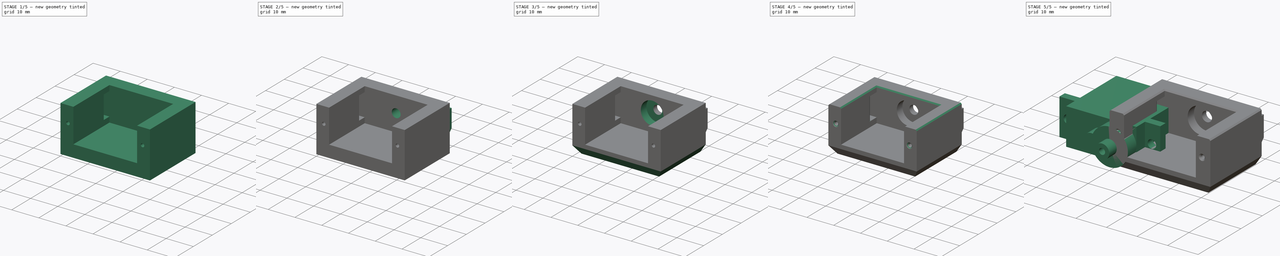
[diagram: build sequence overview — one tinted view per stage of 5, left to right]
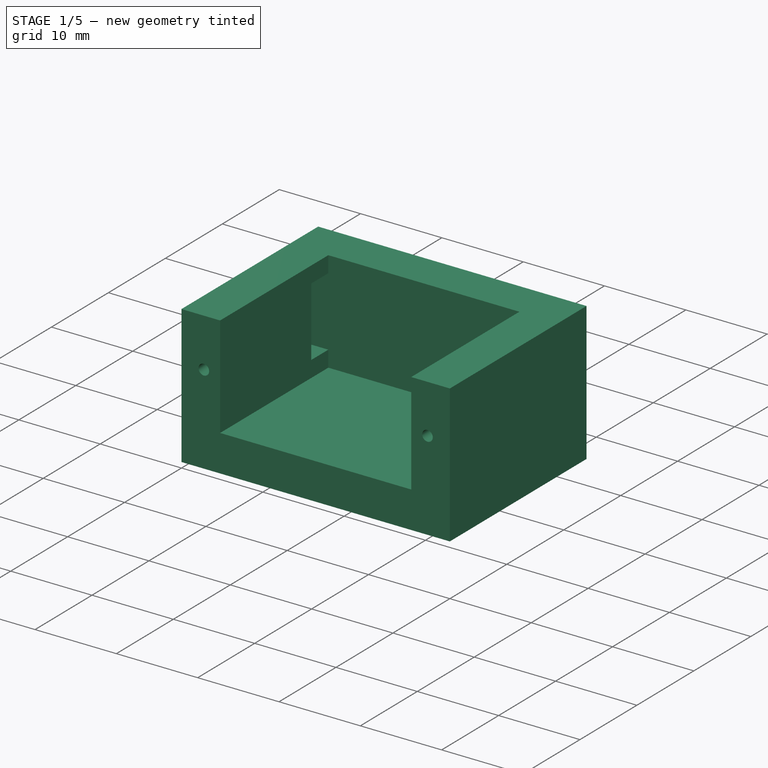
[diagram: stage 1 of 5 — iso view after this stage's code; geometry added in this stage tinted green]
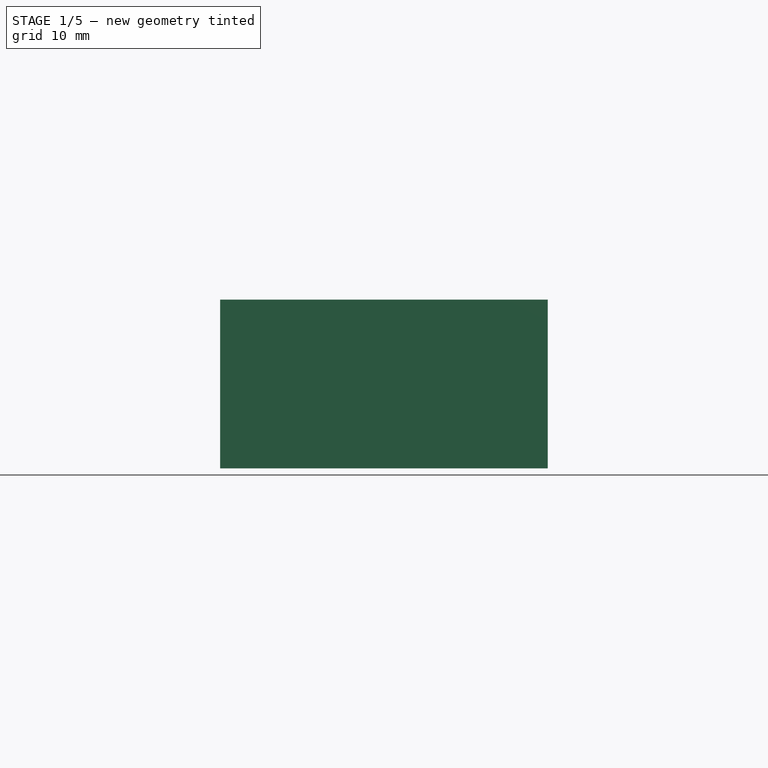
[diagram: stage 1 of 5 — front view after this stage's code; geometry added in this stage tinted green]
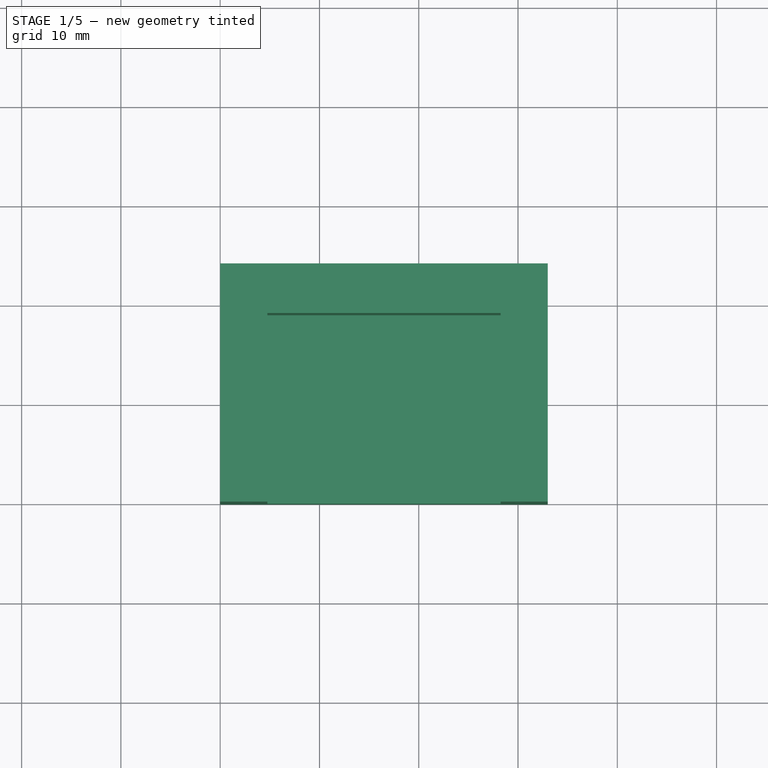
[diagram: stage 1 of 5 — top view after this stage's code; geometry added in this stage tinted green]
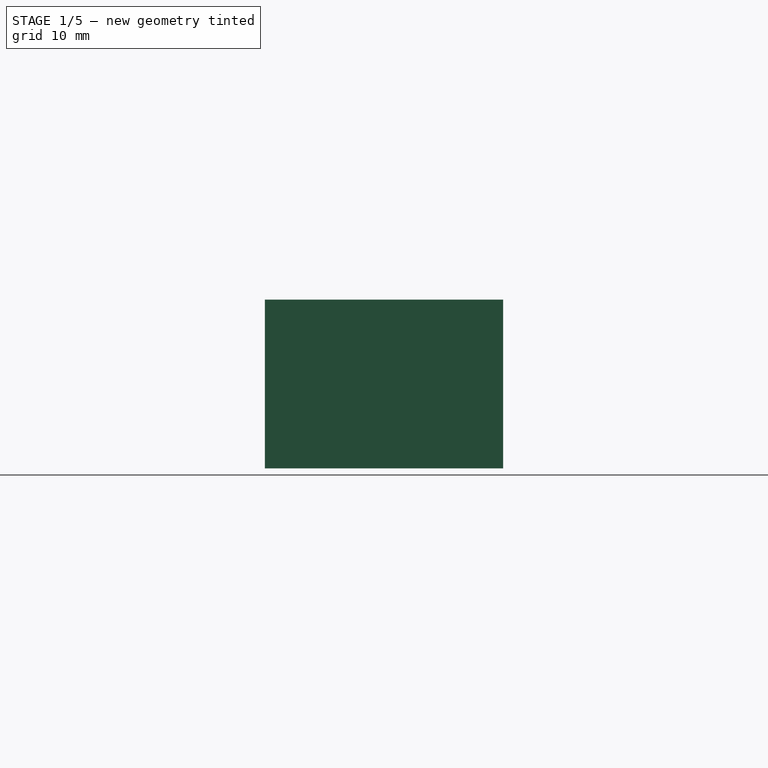
[diagram: stage 1 of 5 — right view after this stage's code; geometry added in this stage tinted green]
FCSTD DOCUMENT  (FreeCAD 0.19R24291 (Git))
Label: nozzle-brush
License: Other
LicenseURL: GPL3
objects: Sketcher::SketchObject×11, PartDesign::Pocket×6, PartDesign::Chamfer×6, PartDesign::Pad×5, PartDesign::Body×2, PartDesign::Fillet×1
note: 49 computed .brp shape members not serialized (recipe doc carries the construction recipe); baked Part::Feature solids carry a one-line shape summary decoded from their .brp

FEATURE [PartDesign::Body] Body  label="servo-pref"
  Group = -> [Sketch,Pad,Sketch001,Pad001,Sketch002,Pad002,Sketch003,Pocket]
  Origin = -> Origin
  Tip = -> Pocket
FEATURE [Sketcher::SketchObject] Sketch004
  FullyConstrained = true
  MapMode = 5
  Support = -> [XY_Plane001]
  sketch-geometry (4):
    g0: LineSegment StartX=0 StartY=0 StartZ=0 EndX=33 EndY=0 EndZ=0
    g1: LineSegment StartX=33 StartY=0 StartZ=0 EndX=33 EndY=24 EndZ=0
    g2: LineSegment StartX=33 StartY=24 StartZ=0 EndX=0 EndY=24 EndZ=0
    g3: LineSegment StartX=0 StartY=24 StartZ=0 EndX=0 EndY=0 EndZ=0
  constraints (11):
    c: Coincident(g0,g1)
    c: Coincident(g1,g2)
    c: Coincident(g2,g3)
    c: Coincident(g3,g0)
    c: Horizontal(g0)
    c: Horizontal(g2)
    c: Vertical(g1)
    c: Vertical(g3)
    c: Coincident(g0,g-1)
    c: DistanceX(g2,g2) = 33
    c: DistanceY(g1,g1) = 24
FEATURE [PartDesign::Pad] Pad003
  Direction = (1,1,1)
  Length = 17
  Length2 = 100
  Profile = -> Sketch004
  Type = 0
FEATURE [Sketcher::SketchObject] Sketch005
  FullyConstrained = true
  MapMode = 5
  Placement = pos=(0,0,17) rot=(0,0,1;0rad)
  Support = -> [Pad003]
  sketch-geometry (4):
    g0: LineSegment StartX=4.75 StartY=0 StartZ=0 EndX=28.25 EndY=0 EndZ=0
    g1: LineSegment StartX=28.25 StartY=0 StartZ=0 EndX=28.25 EndY=19 EndZ=0
    g2: LineSegment StartX=28.25 StartY=19 StartZ=0 EndX=4.75 EndY=19 EndZ=0
    g3: LineSegment StartX=4.75 StartY=19 StartZ=0 EndX=4.75 EndY=0 EndZ=0
  constraints (12):
    c: Coincident(g0,g1)
    c: Coincident(g1,g2)
    c: Coincident(g2,g3)
    c: Coincident(g3,g0)
    c: Horizontal(g0)
    c: Horizontal(g2)
    c: Vertical(g1)
    c: Vertical(g3)
    c: PointOnObject(g0,g-1)
    c: DistanceX(g2,g2) = 23.5
    c: DistanceX(g-1,g0) = 4.75
    c: DistanceY(g1,g1) = 19
FEATURE [PartDesign::Pocket] Pocket001
  BaseFeature = -> Pad003
  Length = 12.5
  Length2 = 100
  Profile = -> Sketch005
  Type = 0
FEATURE [Sketcher::SketchObject] Sketch006
  FullyConstrained = true
  MapMode = 5
  Placement = pos=(0,0,0) rot=(0.57735,-0.57735,-0.57735;2.0944rad)
  Support = -> [Pocket001]
  sketch-geometry (4):
    g0: LineSegment StartX=-19 StartY=15 StartZ=0 EndX=-16 EndY=15 EndZ=0
    g1: LineSegment StartX=-16 StartY=15 StartZ=0 EndX=-16 EndY=6.5 EndZ=0
    g2: LineSegment StartX=-16 StartY=6.5 StartZ=0 EndX=-19 EndY=6.5 EndZ=0
    g3: LineSegment StartX=-19 StartY=6.5 StartZ=0 EndX=-19 EndY=15 EndZ=0
  constraints (12):
    c: Coincident(g0,g1)
    c: Coincident(g1,g2)
    c: Coincident(g2,g3)
    c: Coincident(g3,g0)
    c: Horizontal(g0)
    c: Horizontal(g2)
    c: Vertical(g1)
    c: Vertical(g3)
    c: DistanceY(g1,g1) = 8.5
    c: DistanceY(g-1,g1) = 6.5
    c: DistanceX(g2,g2) = 3
    c: DistanceX(g1,g-1) = 16
FEATURE [PartDesign::Pocket] Pocket002
  BaseFeature = -> Pocket001
  Length = 5
  Length2 = 100
  Profile = -> Sketch006
  Type = 0
FEATURE [Sketcher::SketchObject] Sketch007
  FullyConstrained = true
  MapMode = 5
  Placement = pos=(0,0,0) rot=(1,0,0;1.5708rad)
  Support = -> [Pocket002]
  sketch-geometry (2):
    g0: Circle CenterX=2.75 CenterY=11 CenterZ=0 NormalX=0 NormalY=0 NormalZ=1 AngleXU=0 Radius=0.65
    g1: Circle CenterX=30.25 CenterY=11 CenterZ=0 NormalX=0 NormalY=0 NormalZ=1 AngleXU=0 Radius=0.65
  constraints (6):
    c: DistanceX(g0,g1) = 27.5
    c: Horizontal(g0,g1)
    c: DistanceY(g-1,g0) = 11
    c: DistanceX(g-1,g0) = 2.75
    c: Radius(g1) = 0.65
    c: Radius(g0) = 0.65
FEATURE [PartDesign::Pocket] Pocket003
  BaseFeature = -> Pocket002
  Length = 10
  Length2 = 100
  Profile = -> Sketch007
  Type = 0
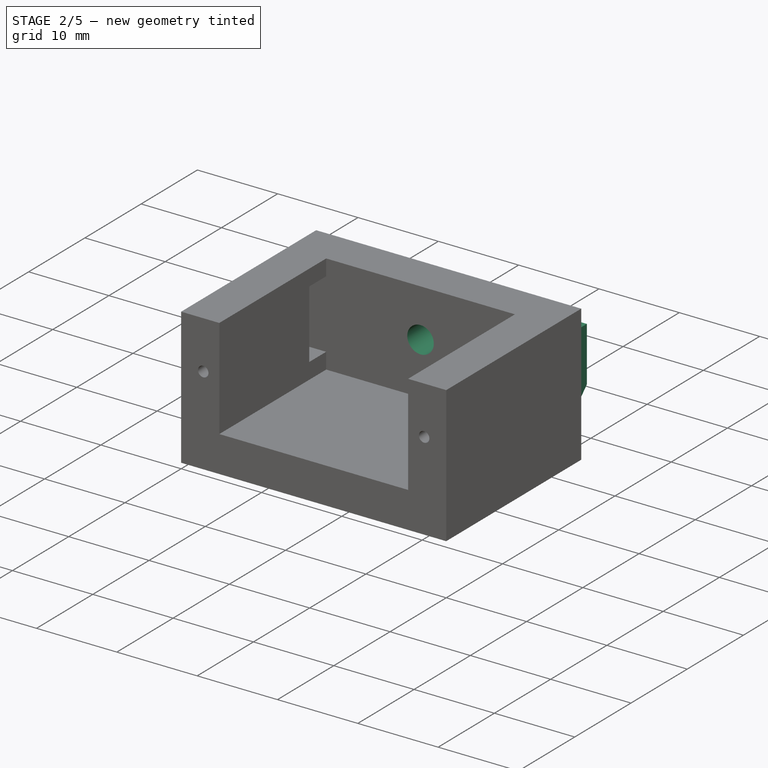
[diagram: stage 2 of 5 — iso view after this stage's code; geometry added in this stage tinted green]
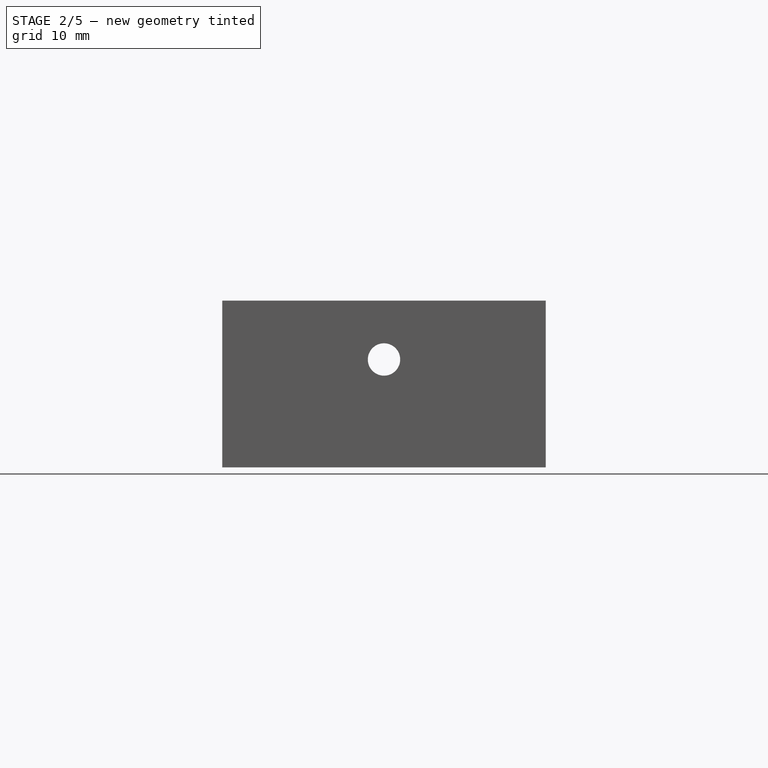
[diagram: stage 2 of 5 — front view after this stage's code; geometry added in this stage tinted green]
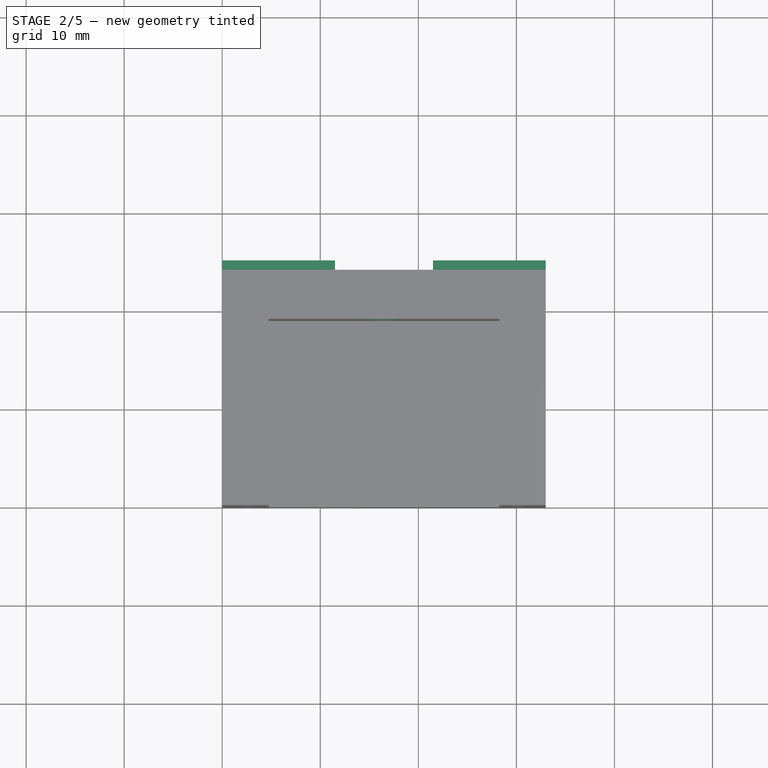
[diagram: stage 2 of 5 — top view after this stage's code; geometry added in this stage tinted green]
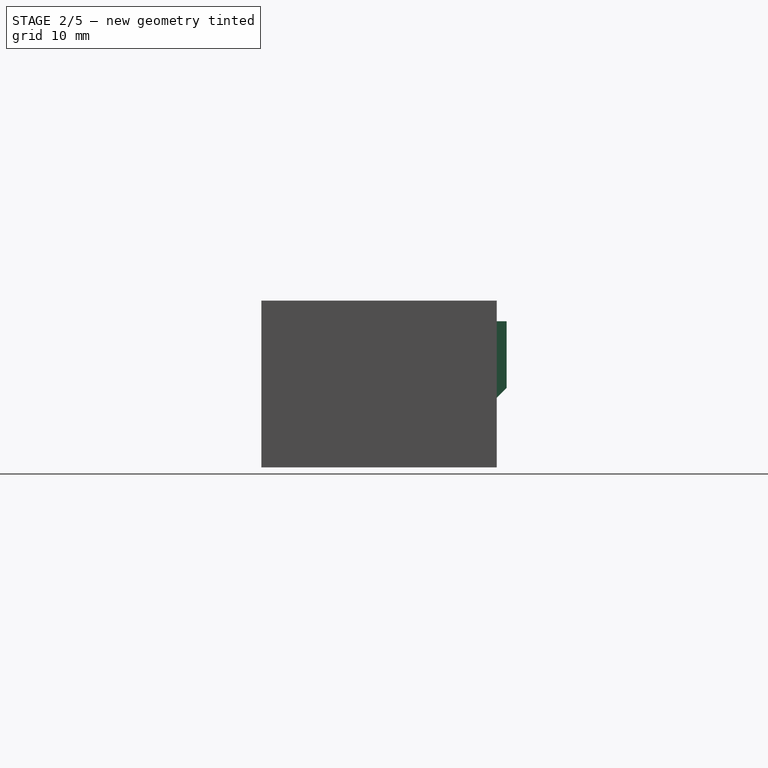
[diagram: stage 2 of 5 — right view after this stage's code; geometry added in this stage tinted green]
FEATURE [Sketcher::SketchObject] Sketch008
  FullyConstrained = true
  MapMode = 5
  Placement = pos=(0,24,0) rot=(0,0.707107,0.707107;3.14159rad)
  Support = -> [Pocket003]
  sketch-geometry (8):
    g0: LineSegment StartX=-33 StartY=14.9 StartZ=0 EndX=-21.5 EndY=14.9 EndZ=0
    g1: LineSegment StartX=-21.5 StartY=14.9 StartZ=0 EndX=-21.5 EndY=7.1 EndZ=0
    g2: LineSegment StartX=-21.5 StartY=7.1 StartZ=0 EndX=-33 EndY=7.1 EndZ=0
    g3: LineSegment StartX=-33 StartY=7.1 StartZ=0 EndX=-33 EndY=14.9 EndZ=0
    g4: LineSegment StartX=-11.5 StartY=14.9 StartZ=0 EndX=0 EndY=14.9 EndZ=0
    g5: LineSegment StartX=0 StartY=14.9 StartZ=0 EndX=0 EndY=7.1 EndZ=0
    g6: LineSegment StartX=0 StartY=7.1 StartZ=0 EndX=-11.5 EndY=7.1 EndZ=0
    g7: LineSegment StartX=-11.5 StartY=7.1 StartZ=0 EndX=-11.5 EndY=14.9 EndZ=0
  constraints (24):
    c: Coincident(g0,g1)
    c: Coincident(g1,g2)
    c: Coincident(g2,g3)
    c: Coincident(g3,g0)
    c: Horizontal(g0)
    c: Horizontal(g2)
    c: Vertical(g1)
    c: Vertical(g3)
    c: Coincident(g4,g5)
    c: Coincident(g5,g6)
    c: Coincident(g6,g7)
    c: Coincident(g7,g4)
    c: Horizontal(g4)
    c: Horizontal(g6)
    c: Vertical(g5)
    c: Vertical(g7)
    c: DistanceX(g4,g4) = 11.5
    c: DistanceX(g0,g0) = 11.5
    c: DistanceY(g3,g3) = 7.8
    c: DistanceY(g7,g7) = 7.8
    c: DistanceX(g0,g4) = 10
    c: DistanceX(g5,g-1) = 0
    c: DistanceY(g-1,g5) = 7.1
    c: Horizontal(g1,g6)
FEATURE [PartDesign::Pad] Pad004
  BaseFeature = -> Pocket003
  Direction = (1,1,1)
  Length = 1
  Length2 = 100
  Profile = -> Sketch008
  Type = 0
FEATURE [PartDesign::Chamfer] Chamfer
  Angle = 45
  Base = -> Pad004 [Edge72,Edge64]
  BaseFeature = -> Pad004
  ChamferType = 0
  FlipDirection = false
  Size = 0.99
  Size2 = 1
  SupportTransform = false
FEATURE [Sketcher::SketchObject] Sketch009
  FullyConstrained = true
  MapMode = 5
  Placement = pos=(0,24,0) rot=(0,0.707107,0.707107;3.14159rad)
  Support = -> [Chamfer]
  sketch-geometry (1):
    g0: Circle CenterX=-16.5 CenterY=11 CenterZ=0 NormalX=0 NormalY=0 NormalZ=1 AngleXU=0 Radius=1.65
  constraints (3):
    c: DistanceY(g-1,g0) = 11
    c: Radius(g0) = 1.65
    c: DistanceX(g0,g-1) = 16.5
FEATURE [PartDesign::Pocket] Pocket004
  BaseFeature = -> Chamfer
  Length = 5
  Length2 = 100
  Profile = -> Sketch009
  Type = 0
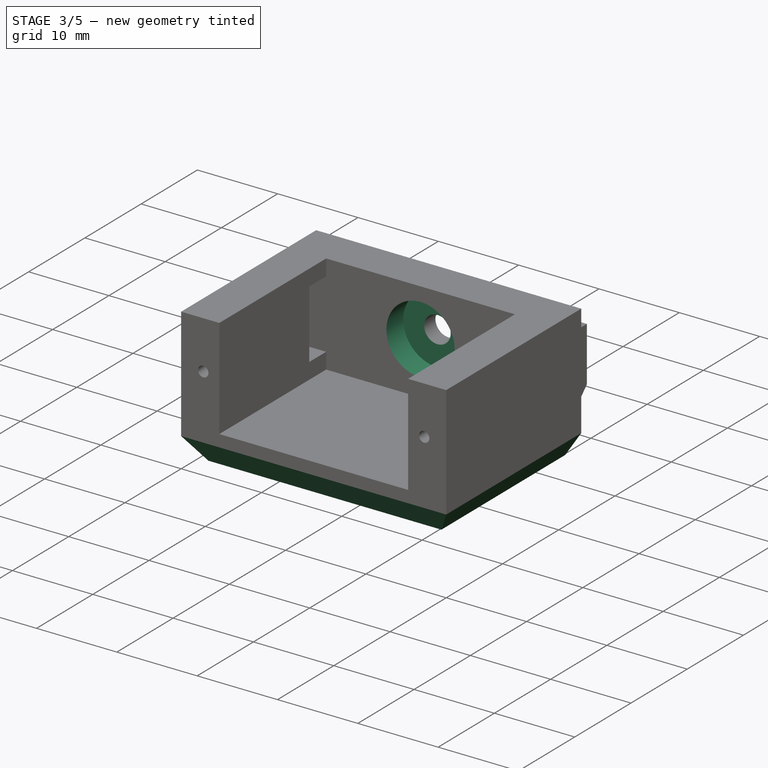
[diagram: stage 3 of 5 — iso view after this stage's code; geometry added in this stage tinted green]
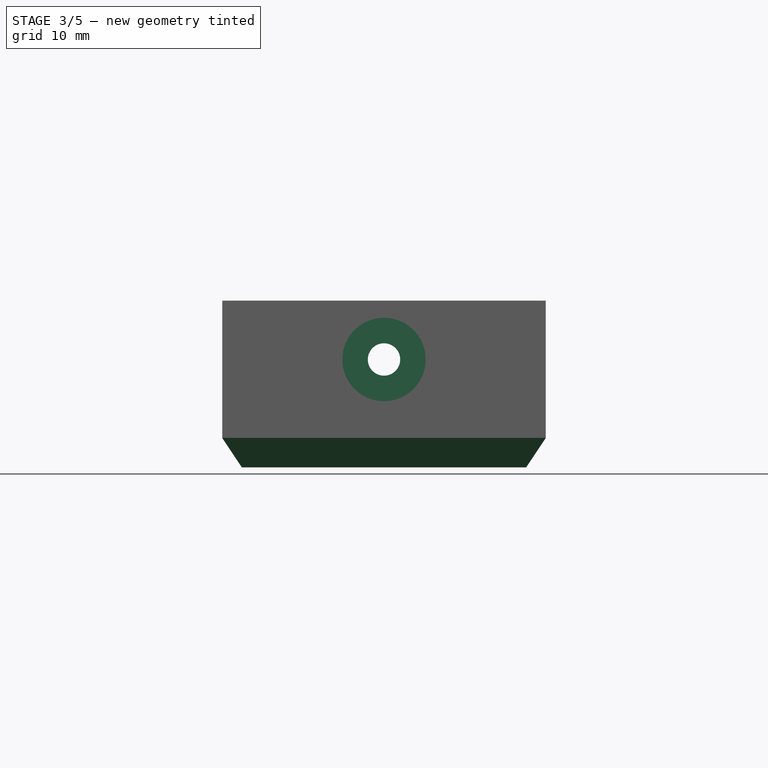
[diagram: stage 3 of 5 — front view after this stage's code; geometry added in this stage tinted green]
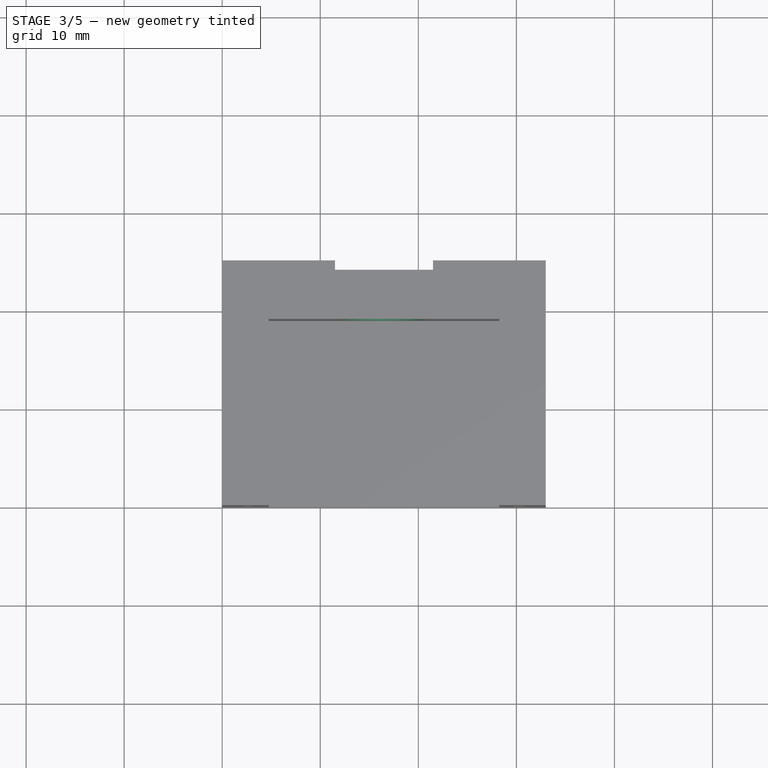
[diagram: stage 3 of 5 — top view after this stage's code; geometry added in this stage tinted green]
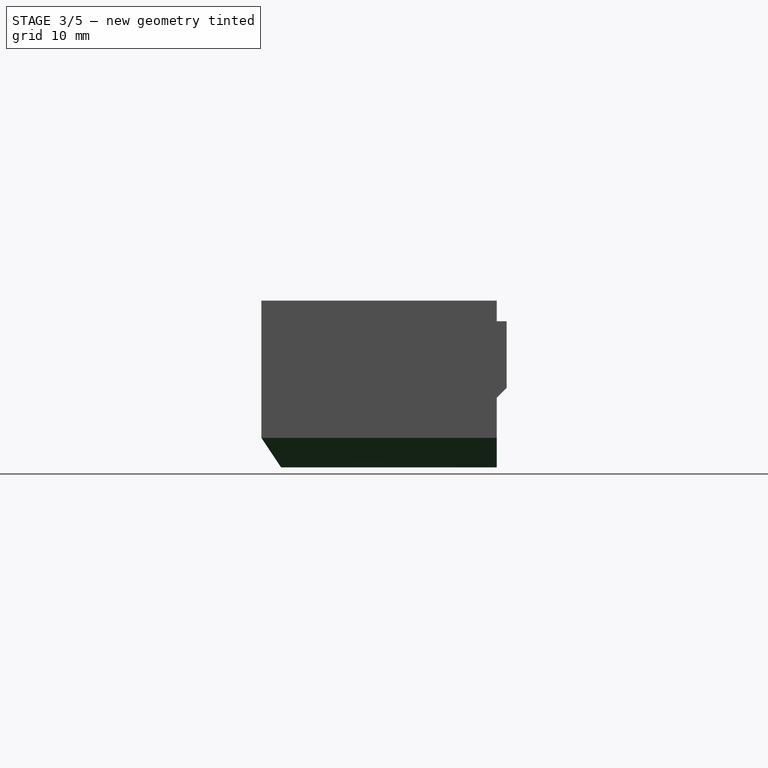
[diagram: stage 3 of 5 — right view after this stage's code; geometry added in this stage tinted green]
FEATURE [Sketcher::SketchObject] Sketch010
  FullyConstrained = true
  MapMode = 5
  Placement = pos=(0,19,0) rot=(1,0,0;1.5708rad)
  Support = -> [Pocket004]
  sketch-geometry (1):
    g0: Circle CenterX=16.5 CenterY=11 CenterZ=0 NormalX=0 NormalY=0 NormalZ=1 AngleXU=0 Radius=4.25
  constraints (3):
    c: DistanceY(g-1,g0) = 11
    c: DistanceX(g-1,g0) = 16.5
    c: Radius(g0) = 4.25
FEATURE [PartDesign::Pocket] Pocket005
  BaseFeature = -> Pocket004
  Length = 3
  Length2 = 100
  Profile = -> Sketch010
  Type = 0
FEATURE [PartDesign::Chamfer] Chamfer001
  Angle = 45
  Base = -> Pocket005 [Edge33]
  BaseFeature = -> Pocket005
  ChamferType = 1
  FlipDirection = false
  Size = 2
  Size2 = 3
  SupportTransform = false
FEATURE [PartDesign::Chamfer] Chamfer002
  Angle = 45
  Base = -> Chamfer001 [Edge1]
  BaseFeature = -> Chamfer001
  ChamferType = 1
  FlipDirection = false
  Size = 3
  Size2 = 2
  SupportTransform = false
FEATURE [PartDesign::Chamfer] Chamfer003
  Angle = 45
  Base = -> Chamfer002 [Edge51]
  BaseFeature = -> Chamfer002
  ChamferType = 1
  FlipDirection = false
  Size = 2
  Size2 = 3
  SupportTransform = false
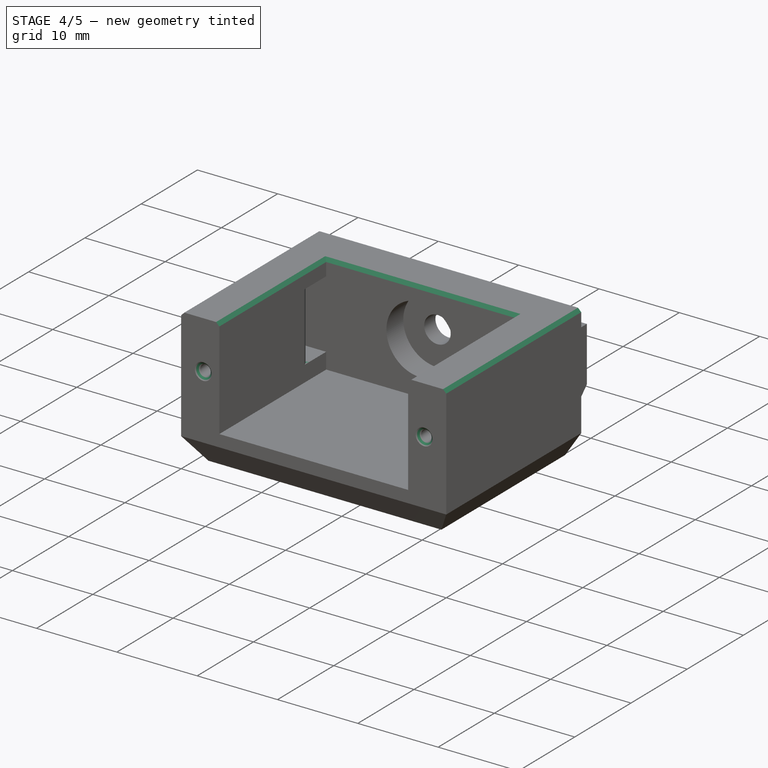
[diagram: stage 4 of 5 — iso view after this stage's code; geometry added in this stage tinted green]
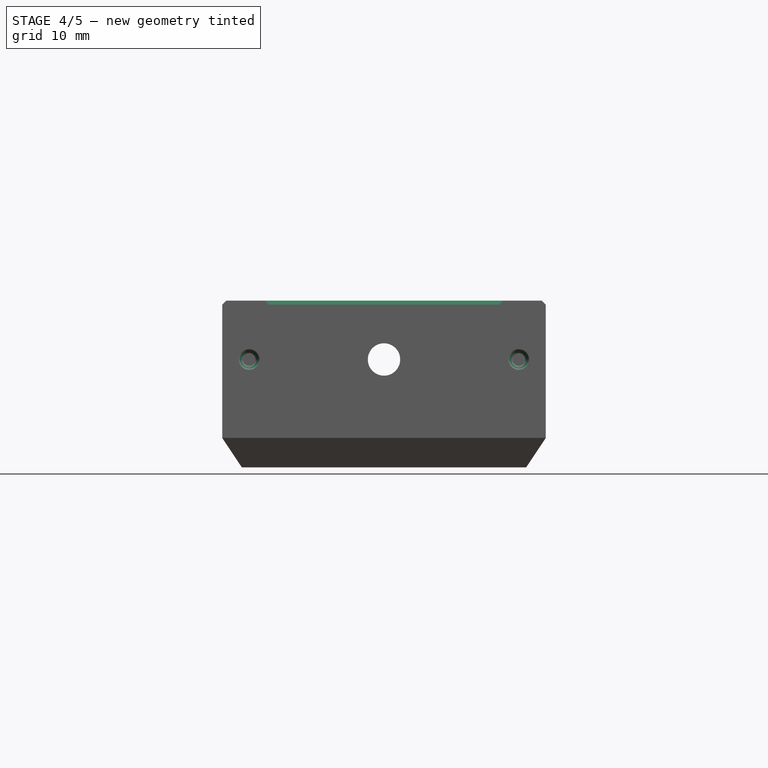
[diagram: stage 4 of 5 — front view after this stage's code; geometry added in this stage tinted green]
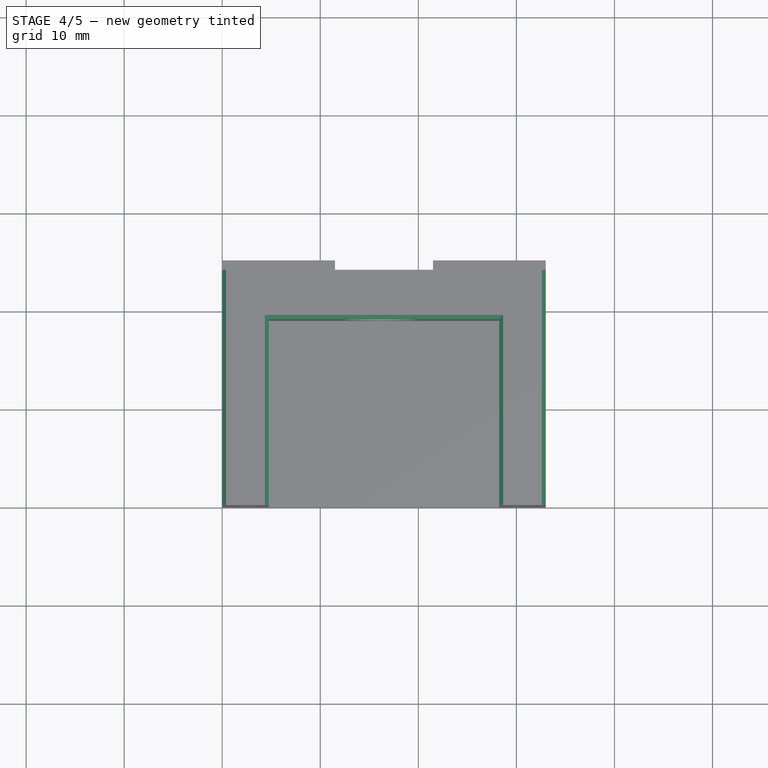
[diagram: stage 4 of 5 — top view after this stage's code; geometry added in this stage tinted green]
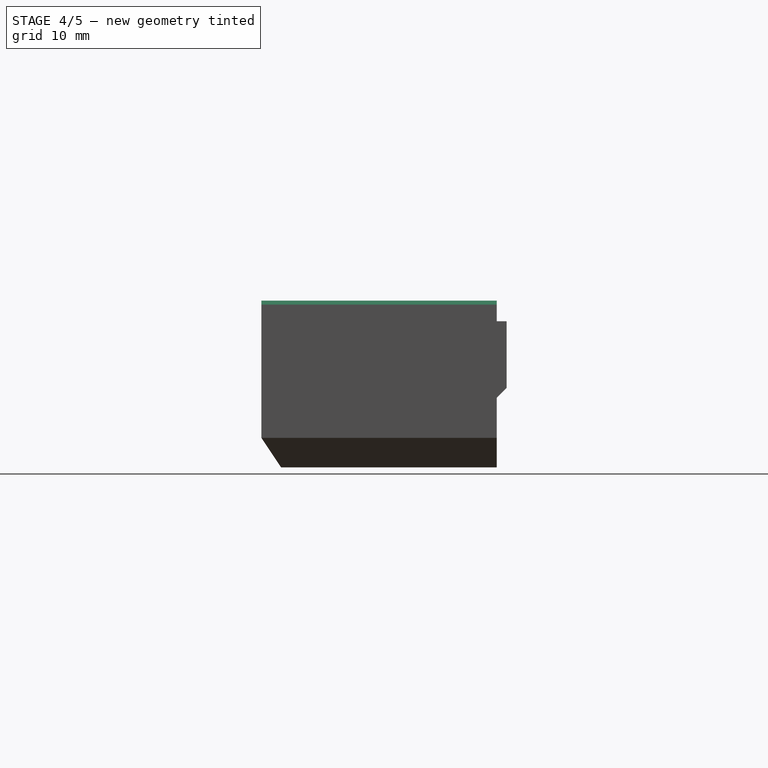
[diagram: stage 4 of 5 — right view after this stage's code; geometry added in this stage tinted green]
FEATURE [PartDesign::Chamfer] Chamfer004
  Angle = 45
  Base = -> Chamfer003 [Edge28,Edge52,Edge51,Edge50,Edge25]
  BaseFeature = -> Chamfer003
  ChamferType = 0
  FlipDirection = false
  Size = 0.4
  Size2 = 1
  SupportTransform = false
FEATURE [PartDesign::Chamfer] Chamfer005
  Angle = 45
  Base = -> Chamfer004 [Edge68,Edge69]
  BaseFeature = -> Chamfer004
  ChamferType = 0
  FlipDirection = false
  Size = 0.4
  Size2 = 1
  SupportTransform = false
FEATURE [PartDesign::Fillet] Fillet
  Base = -> Chamfer005 [Edge49,Edge25,Edge23]
  BaseFeature = -> Chamfer005
  Radius = 1
  SupportTransform = false
FEATURE [PartDesign::Body] Body001
  Group = -> [Sketch004,Pad003,Sketch005,Pocket001,Sketch006,Pocket002,Sketch007,Pocket003,Sketch008,Pad004,Chamfer,Sketch009,Pocket004,Sketch010,Pocket005,Chamfer001,Chamfer002,Chamfer003,Chamfer004,Chamfer005,Fillet]
  Origin = -> Origin001
  Tip = -> Fillet
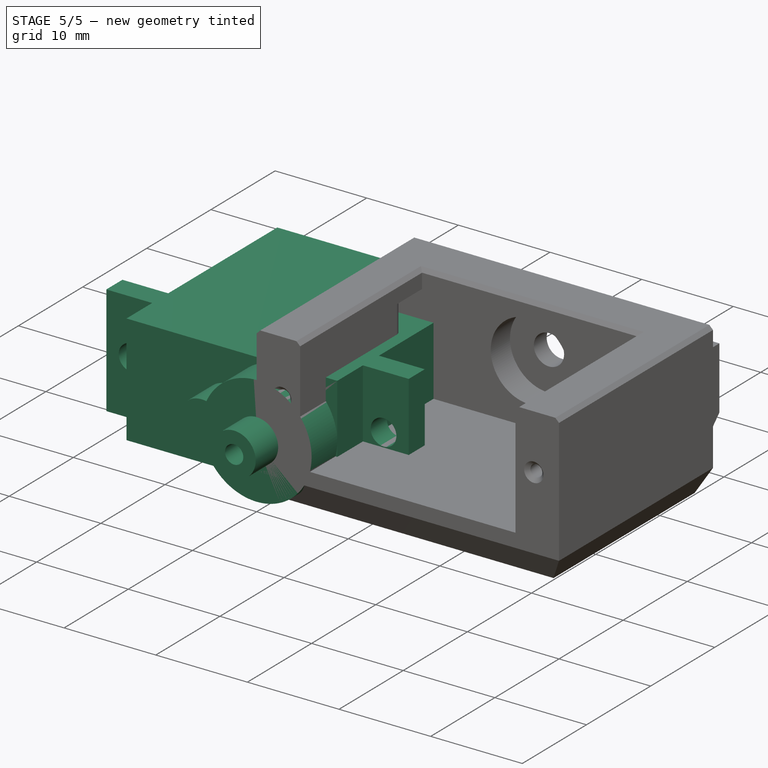
[diagram: stage 5 of 5 — iso view after this stage's code; geometry added in this stage tinted green]
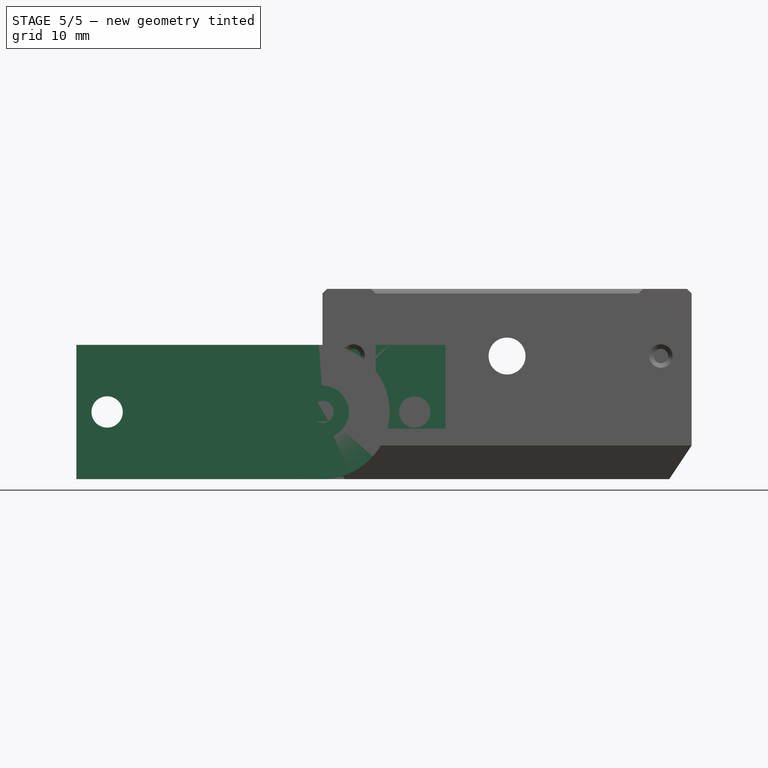
[diagram: stage 5 of 5 — front view after this stage's code; geometry added in this stage tinted green]
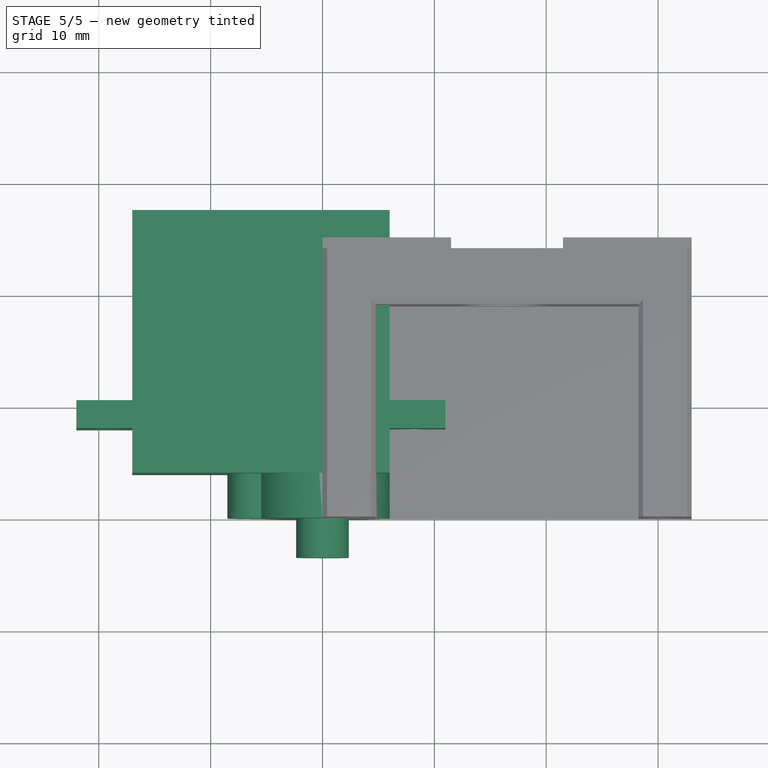
[diagram: stage 5 of 5 — top view after this stage's code; geometry added in this stage tinted green]
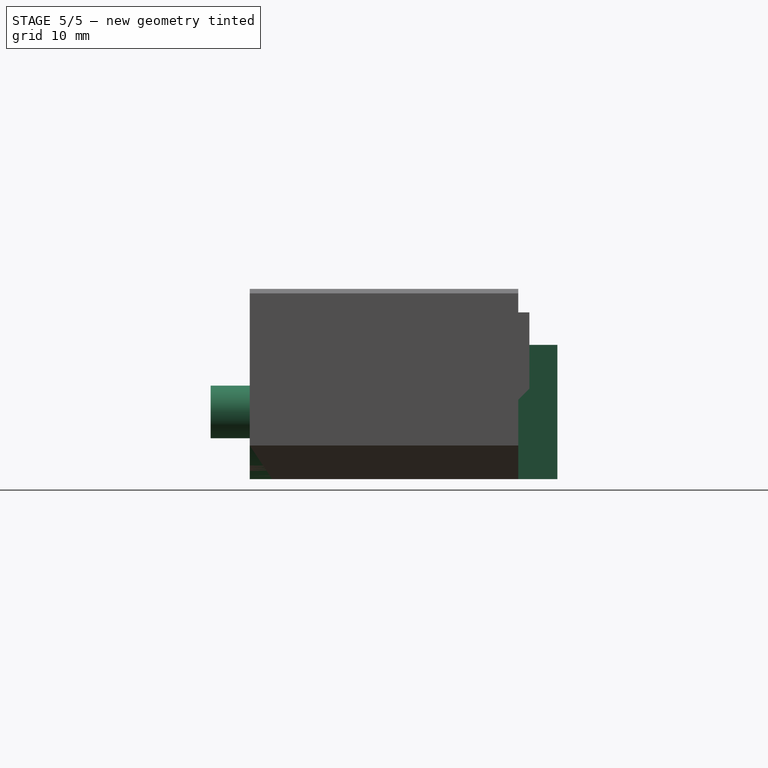
[diagram: stage 5 of 5 — right view after this stage's code; geometry added in this stage tinted green]
FEATURE [Sketcher::SketchObject] Sketch
  FullyConstrained = true
  MapMode = 5
  Support = -> [XY_Plane]
  sketch-geometry (12):
    g0: LineSegment StartX=-22 StartY=10.5 StartZ=0 EndX=-17 EndY=10.5 EndZ=0
    g1: LineSegment StartX=-17 StartY=10.5 StartZ=0 EndX=-17 EndY=27.5 EndZ=0
    g2: LineSegment StartX=-17 StartY=27.5 StartZ=0 EndX=6 EndY=27.5 EndZ=0
    g3: LineSegment StartX=6 StartY=27.5 StartZ=0 EndX=6 EndY=10.5 EndZ=0
    g4: LineSegment StartX=6 StartY=10.5 StartZ=0 EndX=11 EndY=10.5 EndZ=0
    g5: LineSegment StartX=11 StartY=10.5 StartZ=0 EndX=11 EndY=8 EndZ=0
    g6: LineSegment StartX=11 StartY=8 StartZ=0 EndX=6 EndY=8 EndZ=0
    g7: LineSegment StartX=6 StartY=8 StartZ=0 EndX=6 EndY=4 EndZ=0
    g8: LineSegment StartX=6 StartY=4 StartZ=0 EndX=-17 EndY=4 EndZ=0
    g9: LineSegment StartX=-17 StartY=4 StartZ=0 EndX=-17 EndY=8 EndZ=0
    g10: LineSegment StartX=-17 StartY=8 StartZ=0 EndX=-22 EndY=8 EndZ=0
    g11: LineSegment StartX=-22 StartY=8 StartZ=0 EndX=-22 EndY=10.5 EndZ=0
  constraints (36):
    c: Horizontal(g0)
    c: Coincident(g0,g1)
    c: Vertical(g1)
    c: Coincident(g1,g2)
    c: Horizontal(g2)
    c: Coincident(g2,g3)
    c: Vertical(g3)
    c: Coincident(g3,g4)
    c: Horizontal(g4)
    c: Coincident(g4,g5)
    c: Vertical(g5)
    c: Coincident(g5,g6)
    c: Horizontal(g6)
    c: Coincident(g6,g7)
    c: Vertical(g7)
    c: Coincident(g7,g8)
    c: Horizontal(g8)
    c: Coincident(g8,g9)
    c: Vertical(g9)
    c: Coincident(g9,g10)
    c: Horizontal(g10)
    c: Coincident(g10,g11)
    c: Coincident(g11,g0)
    c: Vertical(g11)
    c: DistanceX(g2,g2) = 23
    c: DistanceX(g8,g8) = 23
    c: DistanceY(g3,g3) = 17
    c: DistanceY(g1,g1) = 17
    c: DistanceX(g0,g0) = 5
    c: DistanceX(g4,g4) = 5
    c: DistanceX(g6,g6) = 5
    c: DistanceY(g5,g5) = 2.5
    c: DistanceY(g11,g11) = 2.5
    c: DistanceY(g9,g9) = 4
    c: DistanceY(g-1,g7) = 4
    c: DistanceX(g-1,g7) = 6
FEATURE [PartDesign::Pad] Pad
  Direction = (1,1,1)
  Length = 12
  Length2 = 100
  Profile = -> Sketch
  Type = 0
FEATURE [Sketcher::SketchObject] Sketch001
  FullyConstrained = true
  MapMode = 5
  Placement = pos=(0,4,0) rot=(1,0,0;1.5708rad)
  Support = -> [Pad]
  sketch-geometry (2):
    g0: ArcOfCircle CenterX=0 CenterY=6 CenterZ=0 NormalX=0 NormalY=0 NormalZ=1 AngleXU=0 Radius=6 StartAngle=3.56133 EndAngle=9.00504
    g1: ArcOfCircle CenterX=-6 CenterY=6 CenterZ=0 NormalX=0 NormalY=0 NormalZ=1 AngleXU=0 Radius=2.5 StartAngle=1.36093 EndAngle=4.92226
  constraints (8):
    c: DistanceY(g-1,g0) = 6
    c: DistanceY(g-1,g1) = 6
    c: Radius(g0) = 6
    c: DistanceX(g-1,g0) = 0
    c: Radius(g1) = 2.5
    c: DistanceX(g1,g0) = 6
    c: Coincident(g1,g0)
    c: Coincident(g1,g0)
FEATURE [PartDesign::Pad] Pad001
  BaseFeature = -> Pad
  Direction = (1,1,1)
  Length = 4
  Length2 = 100
  Profile = -> Sketch001
  Type = 0
FEATURE [Sketcher::SketchObject] Sketch002
  FullyConstrained = true
  MapMode = 5
  Placement = pos=(0,2e-16,0) rot=(1,0,0;1.5708rad)
  Support = -> [Pad001]
  sketch-geometry (2):
    g0: Circle CenterX=0 CenterY=6 CenterZ=0 NormalX=0 NormalY=0 NormalZ=1 AngleXU=0 Radius=2.35
    g1: Circle CenterX=0 CenterY=6 CenterZ=0 NormalX=0 NormalY=0 NormalZ=1 AngleXU=0 Radius=1
  constraints (5):
    c: Radius(g0) = 2.35
    c: DistanceY(g-1,g0) = 6
    c: DistanceX(g0,g-1) = 0
    c: Coincident(g1,g0)
    c: Radius(g1) = 1
FEATURE [PartDesign::Pad] Pad002
  BaseFeature = -> Pad001
  Direction = (1,1,1)
  Length = 3.5
  Length2 = 100
  Profile = -> Sketch002
  Type = 0
FEATURE [Sketcher::SketchObject] Sketch003
  FullyConstrained = true
  MapMode = 5
  Placement = pos=(0,8,0) rot=(1,0,0;1.5708rad)
  Support = -> [Pad002]
  sketch-geometry (2):
    g0: Circle CenterX=-19.25 CenterY=6 CenterZ=0 NormalX=0 NormalY=0 NormalZ=1 AngleXU=0 Radius=1.4
    g1: Circle CenterX=8.25 CenterY=6 CenterZ=0 NormalX=0 NormalY=0 NormalZ=1 AngleXU=0 Radius=1.4
  constraints (6):
    c: DistanceY(g-1,g1) = 6
    c: Horizontal(g0,g1)
    c: DistanceX(g0,g1) = 27.5
    c: Radius(g0) = 1.4
    c: Radius(g1) = 1.4
    c: DistanceX(g-1,g1) = 8.25
FEATURE [PartDesign::Pocket] Pocket
  BaseFeature = -> Pad002
  Length = 5
  Length2 = 100
  Profile = -> Sketch003
  Type = 1
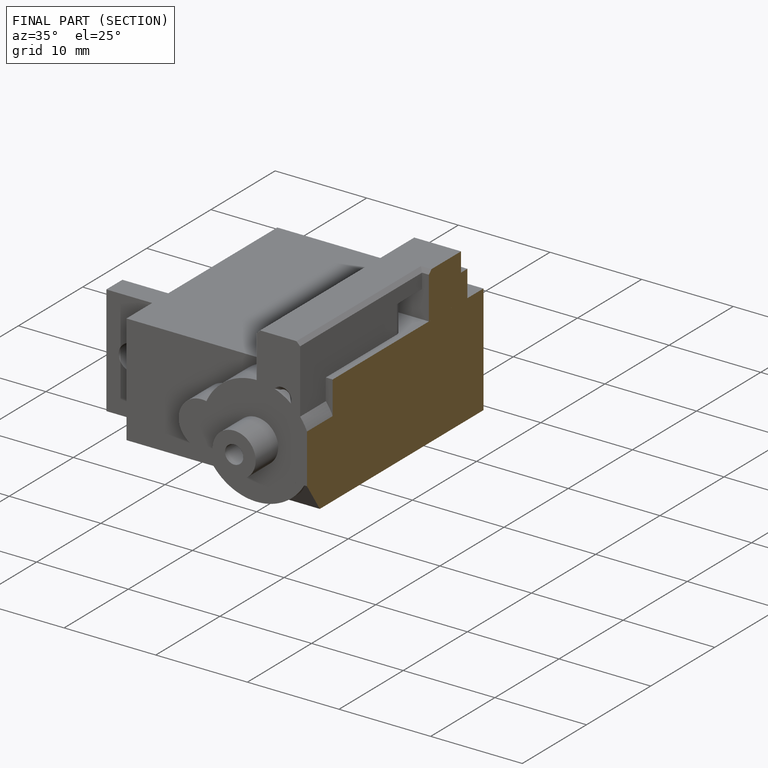
[diagram: finished part — half-section view (interior)]
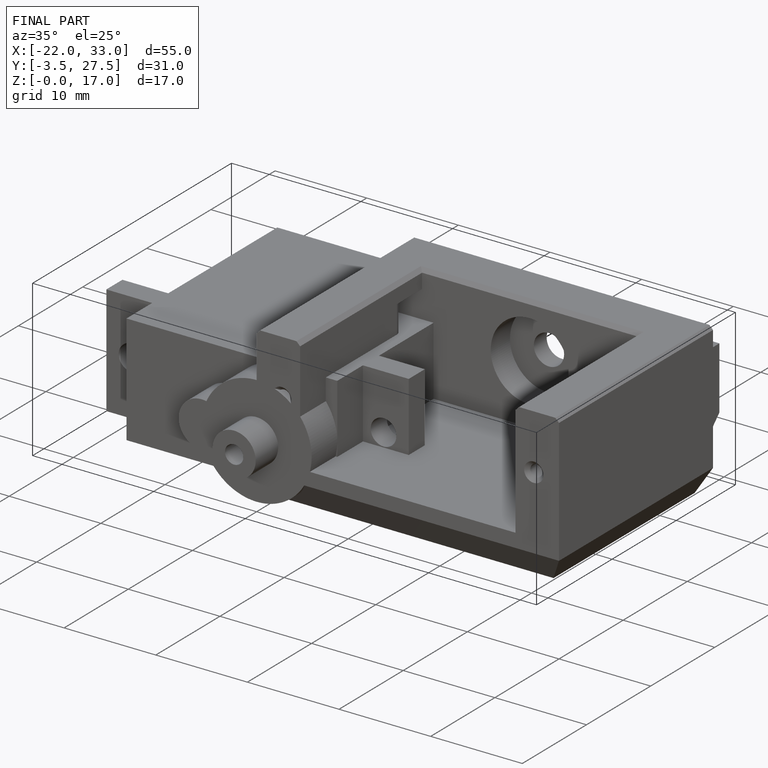
[diagram: finished part — iso view with bounding-box wireframe]
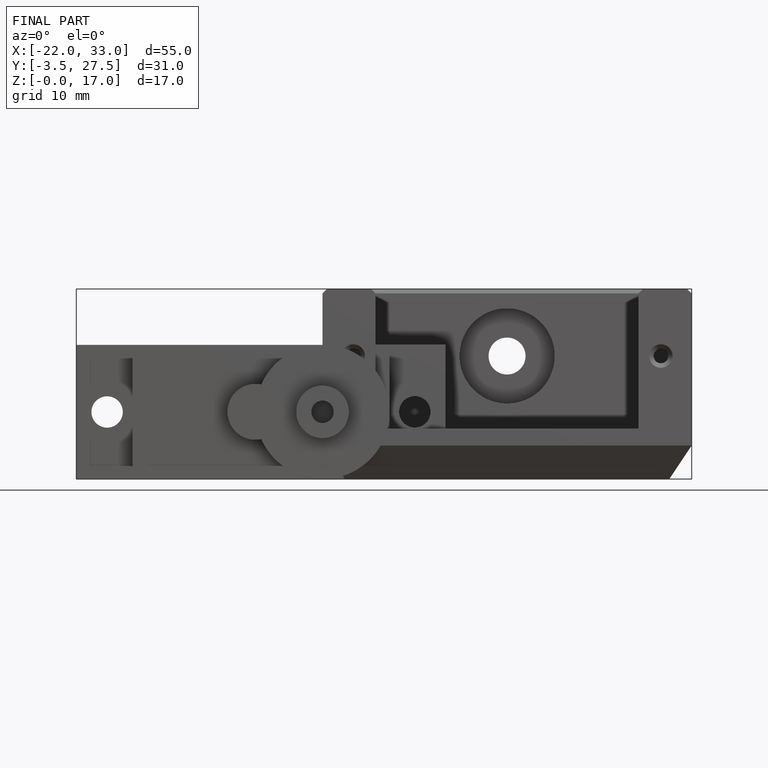
[diagram: finished part — front view with bounding-box wireframe]
